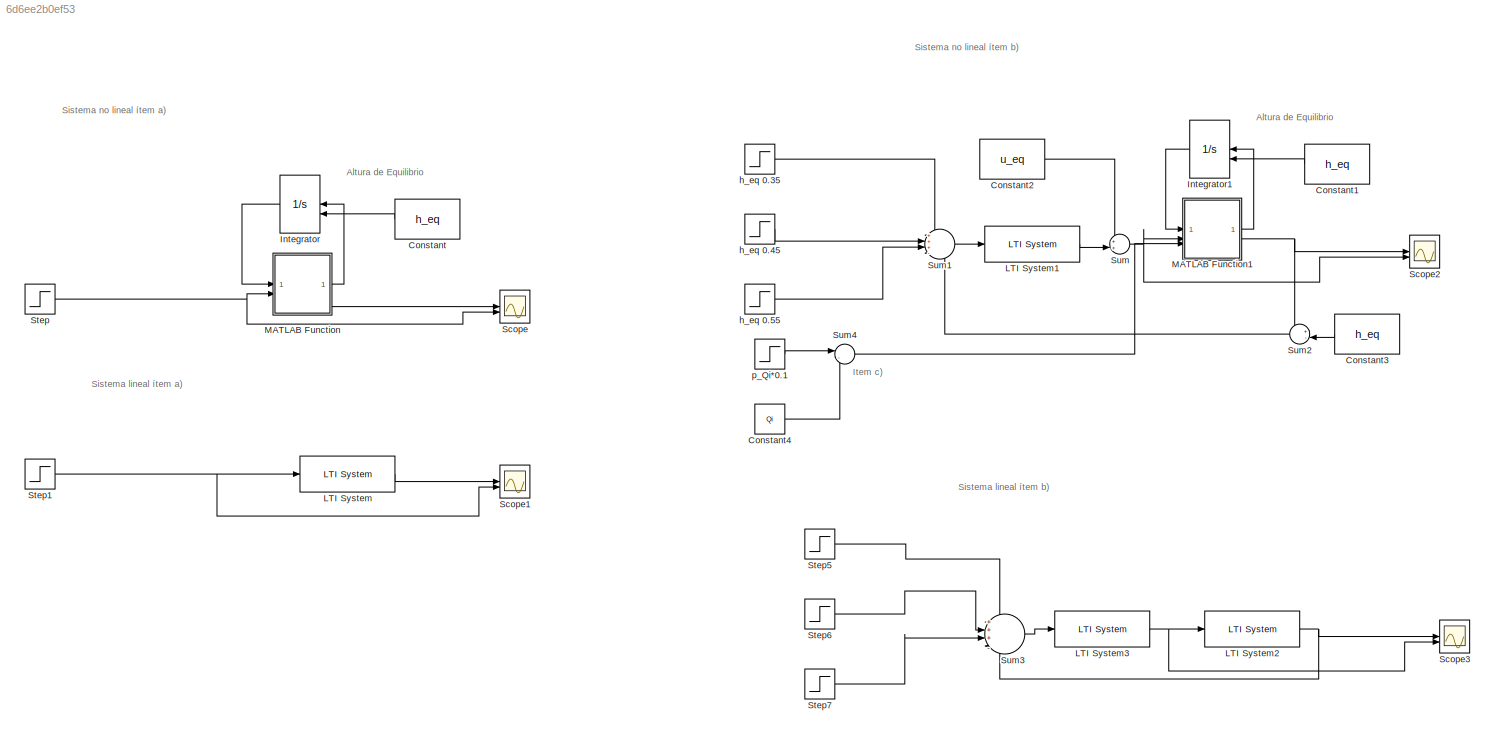
MODEL slx_6d6ee2b0ef53
KIND model
CONFIG AbsTol = auto
CONFIG EnableMultiTasking = off
CONFIG FixedStep = 0.1
CONFIG MaxStep = auto
CONFIG MinStep = auto
CONFIG RelTol = 1e-3
CONFIG SampleTimeConstraint = Unconstrained
CONFIG SolverName = ode4
CONFIG StartTime = 0.0
CONFIG StopTime = 4200
BLOCK [Constant] Constant
  Value = h_eq
BLOCK [Constant] Constant1
  Value = h_eq
BLOCK [Constant] Constant2
  Value = u_eq
BLOCK [Constant] Constant3
  Value = h_eq
BLOCK [Constant] Constant4
  Value = Qi
BLOCK [Integrator] Integrator
  InitialConditionSource = external
BLOCK [Integrator] Integrator1
  InitialConditionSource = external
BLOCK [Reference] LTI System  REF=cstblocks/LTI System
  SourceBlock = cstblocks/LTI System
  SourceType = LTI Block
BLOCK [Reference] LTI System1  REF=cstblocks/LTI System
  SourceBlock = cstblocks/LTI System
  SourceType = LTI Block
BLOCK [Reference] LTI System2  REF=cstblocks/LTI System
  SourceBlock = cstblocks/LTI System
  SourceType = LTI Block
BLOCK [Reference] LTI System3  REF=cstblocks/LTI System
  SourceBlock = cstblocks/LTI System
  SourceType = LTI Block
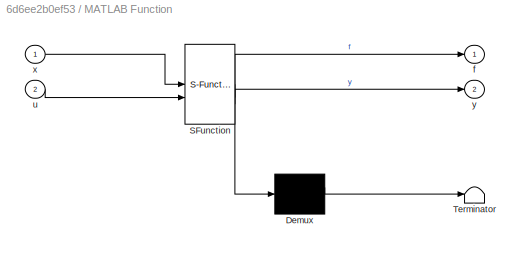
BLOCK [SubSystem] MATLAB Function
  ErrorFcn = Stateflow.Translate.translate
  PermitHierarchicalResolution = ExplicitOnly
  SFBlockType = MATLAB Function
  TreatAsAtomicUnit = on
BLOCK [Demux] MATLAB Function/ Demux 
  Outputs = 1
BLOCK [S-Function] MATLAB Function/ SFunction 
  EnableBusSupport = on
  FunctionName = sf_sfun
  PortCounts = [2 3]
  SFcnIsStateOwnerBlock = off
  SFunctionDeploymentMode = off
  Tag = Stateflow S-Function 2
BLOCK [Terminator] MATLAB Function/ Terminator 
BLOCK [Outport] MATLAB Function/f
BLOCK [Inport] MATLAB Function/u
  Port = 2
BLOCK [Inport] MATLAB Function/x
BLOCK [Outport] MATLAB Function/y
  Port = 2
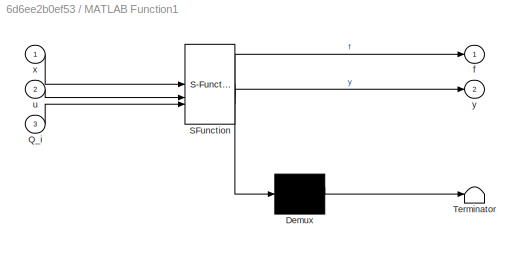
BLOCK [SubSystem] MATLAB Function1
  ErrorFcn = Stateflow.Translate.translate
  PermitHierarchicalResolution = ExplicitOnly
  SFBlockType = MATLAB Function
  TreatAsAtomicUnit = on
BLOCK [Demux] MATLAB Function1/ Demux 
  Outputs = 1
BLOCK [S-Function] MATLAB Function1/ SFunction 
  EnableBusSupport = on
  FunctionName = sf_sfun
  PortCounts = [3 3]
  SFcnIsStateOwnerBlock = off
  SFunctionDeploymentMode = off
  Tag = Stateflow S-Function 1
BLOCK [Terminator] MATLAB Function1/ Terminator 
BLOCK [Inport] MATLAB Function1/Q_i
  Port = 3
BLOCK [Outport] MATLAB Function1/f
BLOCK [Inport] MATLAB Function1/u
  Port = 2
BLOCK [Inport] MATLAB Function1/x
BLOCK [Outport] MATLAB Function1/y
  Port = 2
BLOCK [Scope] Scope
  Floating = off
  NumInputPorts = 2
  ScopeSpecificationString = Simulink.scopes.TimeScopeBlockCfg('CurrentConfiguration', extmgr.ConfigurationSet(extmgr.Configuration('Core','General UI',true,'FigureColor',[1 1 1]),extmgr.Configuration('Core','Source UI',true),extmgr.Configuration('Sources','WiredSimulink',true),extmgr.Configuration('Visuals','Time Domain',true,'SerializedDisplays',{struct('MinYLimReal','0.36214','MaxYLimReal','0.45976','YLabelReal','','MinYLi...<+3803ch>
BLOCK [Scope] Scope1
  Floating = off
  NumInputPorts = 2
  ScopeSpecificationString = Simulink.scopes.TimeScopeBlockCfg('CurrentConfiguration', extmgr.ConfigurationSet(extmgr.Configuration('Core','General UI',true,'FigureColor',[1 1 1]),extmgr.Configuration('Core','Source UI',true),extmgr.Configuration('Sources','WiredSimulink',true,'DataLoggingVariableName','ScopeData1'),extmgr.Configuration('Visuals','Time Domain',true,'SerializedDisplays',{struct('MinYLimReal','-1.1137','MaxYLim...<+3833ch>
BLOCK [Scope] Scope2
  Floating = off
  NumInputPorts = 2
  ScopeSpecificationString = Simulink.scopes.TimeScopeBlockCfg('CurrentConfiguration', extmgr.ConfigurationSet(extmgr.Configuration('Core','General UI',true,'FigureColor',[1 1 1]),extmgr.Configuration('Core','Source UI',true),extmgr.Configuration('Sources','WiredSimulink',true,'DataLoggingVariableName','ScopeData1'),extmgr.Configuration('Visuals','Time Domain',true,'SerializedDisplays',{struct('MinYLimReal','0.54309','MaxYLim...<+3827ch>
BLOCK [Scope] Scope3
  Floating = off
  NumInputPorts = 2
  ScopeSpecificationString = Simulink.scopes.TimeScopeBlockCfg('CurrentConfiguration', extmgr.ConfigurationSet(extmgr.Configuration('Core','General UI',true,'FigureColor',[1 1 1]),extmgr.Configuration('Core','Source UI',true),extmgr.Configuration('Sources','WiredSimulink',true,'DataLoggingVariableName','ScopeData1'),extmgr.Configuration('Visuals','Time Domain',true,'SerializedDisplays',{struct('MinYLimReal','-0.13712','MaxYLi...<+3831ch>
BLOCK [Step] Step
  After = 1.1*u_eq
  Before = u_eq
  SampleTime = 0
  Time = 120
BLOCK [Step] Step1
  After = 1.1*u_eq
  Before = u_eq
  SampleTime = 0
  Time = 120
BLOCK [Step] Step5
  After = -0.1
  SampleTime = 0
  Time = 60
BLOCK [Step] Step6
  After = 0.1
  SampleTime = 0
  Time = 1200
BLOCK [Step] Step7
  After = 0.1
  SampleTime = 0
  Time = 2400
BLOCK [Sum] Sum
  Inputs = ++|
BLOCK [Sum] Sum1
  Inputs = +++-
BLOCK [Sum] Sum2
  Inputs = +-|
  NameLocation = top
BLOCK [Sum] Sum3
  Inputs = +++|-
BLOCK [Sum] Sum4
  Inputs = |-+
BLOCK [Step] h_eq 0.35
  After = -0.1
  SampleTime = 0
  Time = 60
BLOCK [Step] h_eq 0.45
  After = 0.1
  SampleTime = 0
  Time = 1200
BLOCK [Step] h_eq 0.55
  After = 0.1
  SampleTime = 0
  Time = 2400
BLOCK [Step] p_Qi*0.1
  After = 0.1*Qi
  SampleTime = 0
  Time = 3500
ANNOTATION (root): Item c)
ANNOTATION (root): Sistema lineal ítem a)
ANNOTATION (root): Sistema lineal ítem b)
ANNOTATION (root): Sistema no lineal ítem a)
ANNOTATION (root): Sistema no lineal ítem b)
ANNOTATION (root): Altura de Equilibrio
LINE Constant1:1 -> Integrator1:2
LINE Constant2:1 -> Sum:1
LINE Constant3:1 -> Sum2:2
LINE Constant4:1 -> Sum4:2
LINE Constant:1 -> Integrator:2
LINE Integrator1:1 -> MATLAB Function1:1
LINE Integrator:1 -> MATLAB Function:1
LINE LTI System1:1 -> Sum:2
NET LTI System2:1 -> Scope3:1, Sum3:4
NET LTI System3:1 -> LTI System2:1, Scope3:2
LINE LTI System:1 -> Scope1:1
LINE MATLAB Function1:1 -> Integrator1:1
NET MATLAB Function1:2 -> Scope2:1, Sum2:1
LINE MATLAB Function:1 -> Integrator:1
LINE MATLAB Function:2 -> Scope:1
NET Step1:1 -> LTI System:1, Scope1:2
LINE Step5:1 -> Sum3:1
LINE Step6:1 -> Sum3:2
LINE Step7:1 -> Sum3:3
NET Step:1 -> MATLAB Function:2, Scope:2
LINE Sum1:1 -> LTI System1:1
LINE Sum2:1 -> Sum1:4
LINE Sum3:1 -> LTI System3:1
LINE Sum4:1 -> MATLAB Function1:3
NET Sum:1 -> MATLAB Function1:2, Scope2:2
LINE h_eq 0.35:1 -> Sum1:1
LINE h_eq 0.45:1 -> Sum1:2
LINE h_eq 0.55:1 -> Sum1:3
LINE p_Qi*0.1:1 -> Sum4:1
note: NET lines group one-source signal fan-out (src -> all destinations, sorted); 1:1 wires keep LINE
CHART MATLAB Function1 states=1 transitions=1
  STATE_LABEL 'eML_blk_kernel()'
  STATE_LABEL 'SCRIPT:\nfunction [f,y] = fcn(x,u,Q_i)\n%Qi=0.000133333;\nd=10.65e-3;\nl_inf=10e-2;\nl_sup=40e-2;\nL=0.9;\ng=9.8;\nA=(pi/4)*d.^2;\n\nf1=(Q_i-sqrt(2*g*x(1))*u*A)/(l_inf^2+2*l_inf*(l_sup-l_inf)*x(1)+(l_sup-l_inf)^2/L*x(1));\nf=[f1];\n\ny=x(1);\n'
CHART MATLAB Function states=1 transitions=1
  STATE_LABEL 'eML_blk_kernel()'
  STATE_LABEL 'SCRIPT:\nfunction [f,y] = fcn(x,u)\nQi=0.000133333;\nd=10.65e-3;\nl_inf=10e-2;\nl_sup=40e-2;\nL=0.9;\ng=9.8;\nA=(pi/4)*d.^2;\n\nf1=(Qi-sqrt(2*g*x(1))*u*A)/(l_inf^2+2*l_inf*(l_sup-l_inf)*x(1)+(l_sup-l_inf)^2/L*x(1));\nf=[f1];\n\ny=x(1);\n'
CHART  states=0 transitions=0
CHART  states=0 transitions=0
